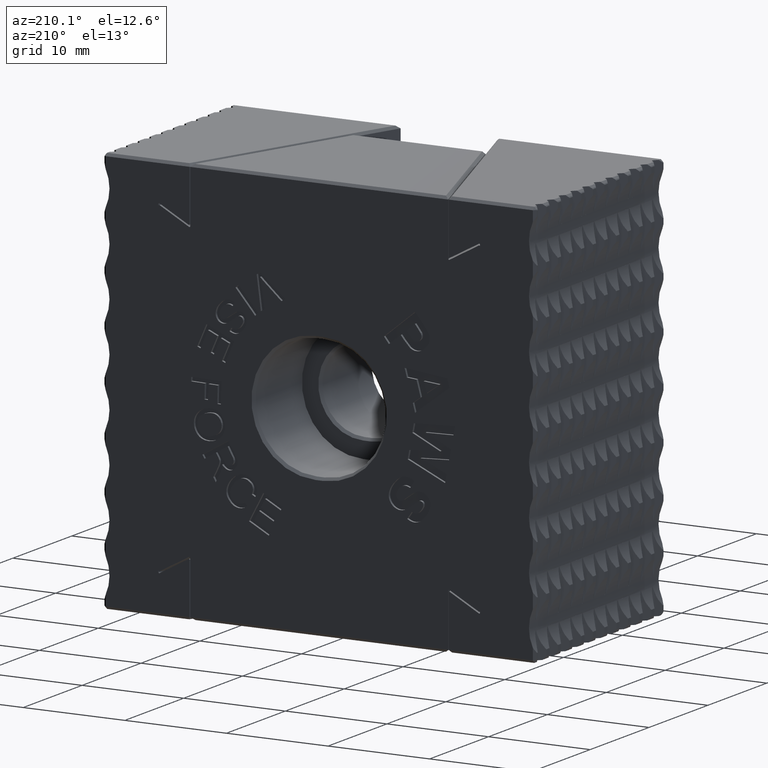
[diagram: clean part render]
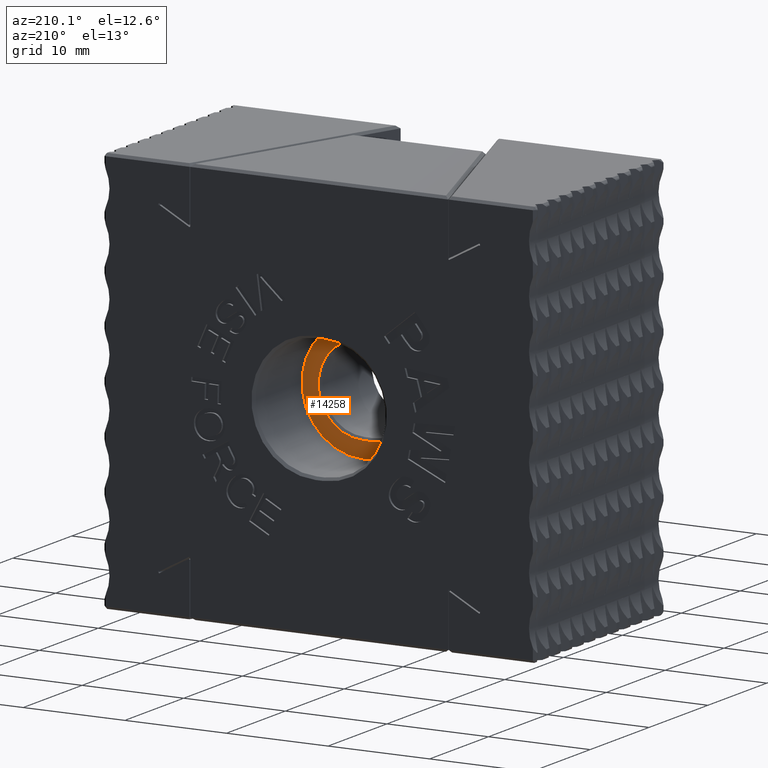
[diagram: same view with one face highlighted and labeled with its STEP entity id]
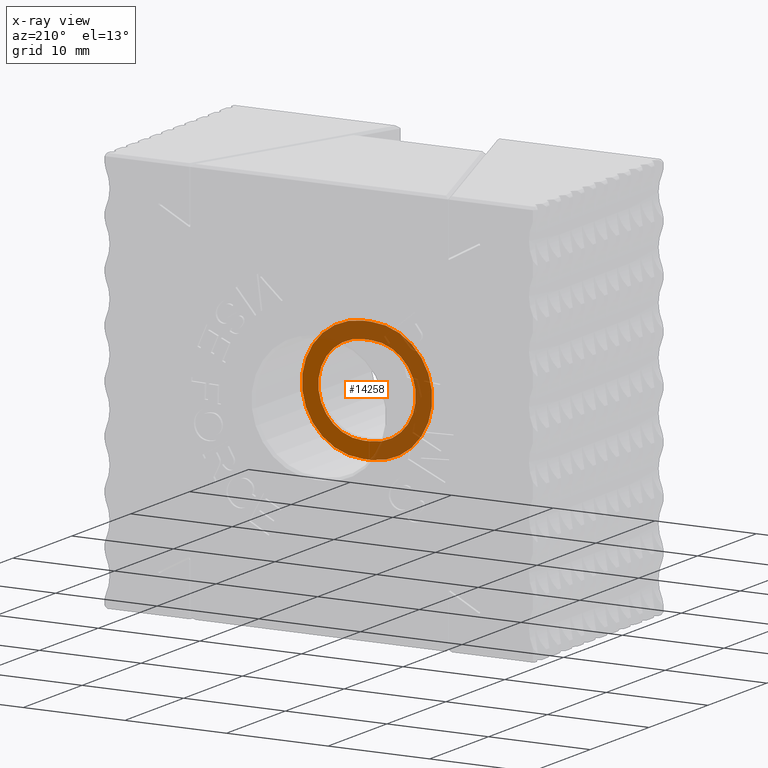
[diagram: x-ray of the same camera — body ghosted, the highlighted face saturated]
A machine part, auxiliary view. The second image highlights one B-rep face of the part: STEP entity #14258.
The next image is the same camera in x-ray: the body ghosted, the highlighted face saturated — about 59% of this face is hidden behind the body in this view.
In plain terms, the highlighted planar face has unit normal (0, 1, 0).
Its self-contained STEP definition (entity closure, byte-faithful):
#1787 = DIRECTION ( 'NONE',  ( 0.0000000000000000000, 0.0000000000000000000, 1.000000000000000000 ) ) ;
#2346 = CIRCLE ( 'NONE', #15255, 0.2374999999999999889 ) ;
#2537 = DIRECTION ( 'NONE',  ( 1.000000000000000000, 0.0000000000000000000, 0.0000000000000000000 ) ) ;
#2785 = DIRECTION ( 'NONE',  ( 0.0000000000000000000, 1.000000000000000000, 0.0000000000000000000 ) ) ;
#2899 = CIRCLE ( 'NONE', #6796, 0.2374999999999999889 ) ;
#2995 = VERTEX_POINT ( 'NONE', #10993 ) ;
#5306 = EDGE_CURVE ( 'NONE', #8414, #30111, #32173, .T. ) ;
#5373 = CIRCLE ( 'NONE', #18076, 0.1740000000000000990 ) ;
#5650 = VECTOR ( 'NONE', #18575, 39.37007874015748143 ) ;
#6796 = AXIS2_PLACEMENT_3D ( 'NONE', #22428, #7147, #24960 ) ;
#6997 = ORIENTED_EDGE ( 'NONE', *, *, #10323, .T. ) ;
#7147 = DIRECTION ( 'NONE',  ( 0.0000000000000000000, 1.000000000000000000, 0.0000000000000000000 ) ) ;
#7607 = CARTESIAN_POINT ( 'NONE',  ( -0.01499999999999995261, 0.3490000000000000324, -0.1740000000000000990 ) ) ;
#7757 = ORIENTED_EDGE ( 'NONE', *, *, #11089, .T. ) ;
#7815 = DIRECTION ( 'NONE',  ( -0.0000000000000000000, -1.000000000000000000, -0.0000000000000000000 ) ) ;
#7903 = VERTEX_POINT ( 'NONE', #17894 ) ;
#8320 = CARTESIAN_POINT ( 'NONE',  ( -0.01499999999999997516, 0.3490000000000000324, 0.1740000000000000990 ) ) ;
#8354 = CARTESIAN_POINT ( 'NONE',  ( 0.01499999999999997863, 0.3490000000000000324, -0.1740000000000000990 ) ) ;
#8414 = VERTEX_POINT ( 'NONE', #25695 ) ;
#10323 = EDGE_CURVE ( 'NONE', #2995, #7903, #16286, .T. ) ;
#10324 = CARTESIAN_POINT ( 'NONE',  ( 0.01500000000000001506, 0.3490000000000000324, 0.1740000000000000990 ) ) ;
#10533 = ORIENTED_EDGE ( 'NONE', *, *, #10790, .T. ) ;
#10705 = EDGE_CURVE ( 'NONE', #17659, #2995, #2346, .T. ) ;
#10790 = EDGE_CURVE ( 'NONE', #23152, #8414, #13463, .T. ) ;
#10993 = CARTESIAN_POINT ( 'NONE',  ( 0.01500000000000001159, 0.3490000000000000324, -0.2374999999999999889 ) ) ;
#11089 = EDGE_CURVE ( 'NONE', #26812, #17659, #19005, .T. ) ;
#11124 = ORIENTED_EDGE ( 'NONE', *, *, #13050, .T. ) ;
#11274 = FACE_OUTER_BOUND ( 'NONE', #13937, .T. ) ;
#12254 = PLANE ( 'NONE',  #13185 ) ;
#12672 = VECTOR ( 'NONE', #18655, 39.37007874015748143 ) ;
#13050 = EDGE_CURVE ( 'NONE', #14323, #23152, #5373, .T. ) ;
#13185 = AXIS2_PLACEMENT_3D ( 'NONE', #17278, #14831, #32599 ) ;
#13413 = AXIS2_PLACEMENT_3D ( 'NONE', #32218, #17015, #1787 ) ;
#13463 = LINE ( 'NONE', #8320, #12672 ) ;
#13937 = EDGE_LOOP ( 'NONE', ( #25907, #7757, #25402, #6997 ) ) ;
#14258 = ADVANCED_FACE ( 'NONE', ( #30794, #11274 ), #12254, .T. ) ;
#14323 = VERTEX_POINT ( 'NONE', #17700 ) ;
#14681 = CARTESIAN_POINT ( 'NONE',  ( -0.01500000000000001159, 0.3490000000000000324, -0.2374999999999999889 ) ) ;
#14831 = DIRECTION ( 'NONE',  ( 0.0000000000000000000, 1.000000000000000000, 0.0000000000000000000 ) ) ;
#14951 = EDGE_CURVE ( 'NONE', #7903, #26812, #2899, .T. ) ;
#15180 = EDGE_CURVE ( 'NONE', #30111, #14323, #25181, .T. ) ;
#15255 = AXIS2_PLACEMENT_3D ( 'NONE', #18020, #2785, #20549 ) ;
#15343 = ORIENTED_EDGE ( 'NONE', *, *, #15180, .T. ) ;
#15473 = VECTOR ( 'NONE', #17231, 39.37007874015748143 ) ;
#16286 = LINE ( 'NONE', #14681, #15473 ) ;
#17015 = DIRECTION ( 'NONE',  ( -0.0000000000000000000, -1.000000000000000000, -0.0000000000000000000 ) ) ;
#17231 = DIRECTION ( 'NONE',  ( -1.000000000000000000, -0.0000000000000000000, -0.0000000000000000000 ) ) ;
#17278 = CARTESIAN_POINT ( 'NONE',  ( -0.01500000000000001159, 0.3490000000000000324, 0.0000000000000000000 ) ) ;
#17659 = VERTEX_POINT ( 'NONE', #31388 ) ;
#17700 = CARTESIAN_POINT ( 'NONE',  ( 0.01499999999999997863, 0.3490000000000000324, -0.1740000000000000990 ) ) ;
#17894 = CARTESIAN_POINT ( 'NONE',  ( -0.01500000000000001159, 0.3490000000000000324, -0.2374999999999999889 ) ) ;
#18020 = CARTESIAN_POINT ( 'NONE',  ( 0.01500000000000001159, 0.3490000000000000324, 0.0000000000000000000 ) ) ;
#18076 = AXIS2_PLACEMENT_3D ( 'NONE', #23096, #7815, #25617 ) ;
#18575 = DIRECTION ( 'NONE',  ( 1.000000000000000000, 0.0000000000000000000, 0.0000000000000000000 ) ) ;
#18655 = DIRECTION ( 'NONE',  ( -1.000000000000000000, 0.0000000000000000000, 0.0000000000000000000 ) ) ;
#19005 = LINE ( 'NONE', #32993, #31738 ) ;
#20549 = DIRECTION ( 'NONE',  ( 0.0000000000000000000, 0.0000000000000000000, 1.000000000000000000 ) ) ;
#22428 = CARTESIAN_POINT ( 'NONE',  ( -0.01500000000000001159, 0.3490000000000000324, 0.0000000000000000000 ) ) ;
#23096 = CARTESIAN_POINT ( 'NONE',  ( 0.01499999999999997516, 0.3490000000000000324, -1.192608612617592685E-26 ) ) ;
#23152 = VERTEX_POINT ( 'NONE', #10324 ) ;
#24960 = DIRECTION ( 'NONE',  ( 0.0000000000000000000, 0.0000000000000000000, 1.000000000000000000 ) ) ;
#25181 = LINE ( 'NONE', #8354, #5650 ) ;
#25402 = ORIENTED_EDGE ( 'NONE', *, *, #10705, .T. ) ;
#25617 = DIRECTION ( 'NONE',  ( 0.0000000000000000000, 0.0000000000000000000, 1.000000000000000000 ) ) ;
#25695 = CARTESIAN_POINT ( 'NONE',  ( -0.01499999999999997689, 0.3490000000000000324, 0.1740000000000000990 ) ) ;
#25907 = ORIENTED_EDGE ( 'NONE', *, *, #14951, .T. ) ;
#26812 = VERTEX_POINT ( 'NONE', #32482 ) ;
#28469 = ORIENTED_EDGE ( 'NONE', *, *, #5306, .T. ) ;
#28847 = EDGE_LOOP ( 'NONE', ( #10533, #28469, #15343, #11124 ) ) ;
#30111 = VERTEX_POINT ( 'NONE', #7607 ) ;
#30794 = FACE_BOUND ( 'NONE', #28847, .T. ) ;
#31388 = CARTESIAN_POINT ( 'NONE',  ( 0.01500000000000001159, 0.3490000000000000324, 0.2374999999999999889 ) ) ;
#31738 = VECTOR ( 'NONE', #2537, 39.37007874015748143 ) ;
#32173 = CIRCLE ( 'NONE', #13413, 0.1740000000000000990 ) ;
#32218 = CARTESIAN_POINT ( 'NONE',  ( -0.01499999999999997516, 0.3490000000000000324, 0.0000000000000000000 ) ) ;
#32482 = CARTESIAN_POINT ( 'NONE',  ( -0.01500000000000001159, 0.3490000000000000324, 0.2374999999999999889 ) ) ;
#32599 = DIRECTION ( 'NONE',  ( 0.0000000000000000000, -0.0000000000000000000, 1.000000000000000000 ) ) ;
#32993 = CARTESIAN_POINT ( 'NONE',  ( -0.01500000000000001159, 0.3490000000000000324, 0.2374999999999999889 ) ) ;